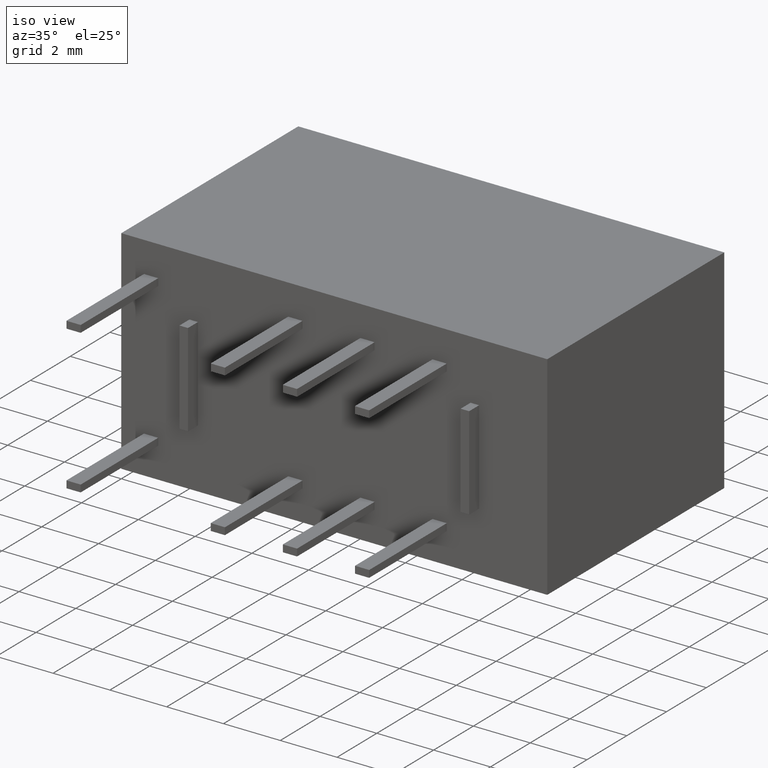
[diagram: clean part render]
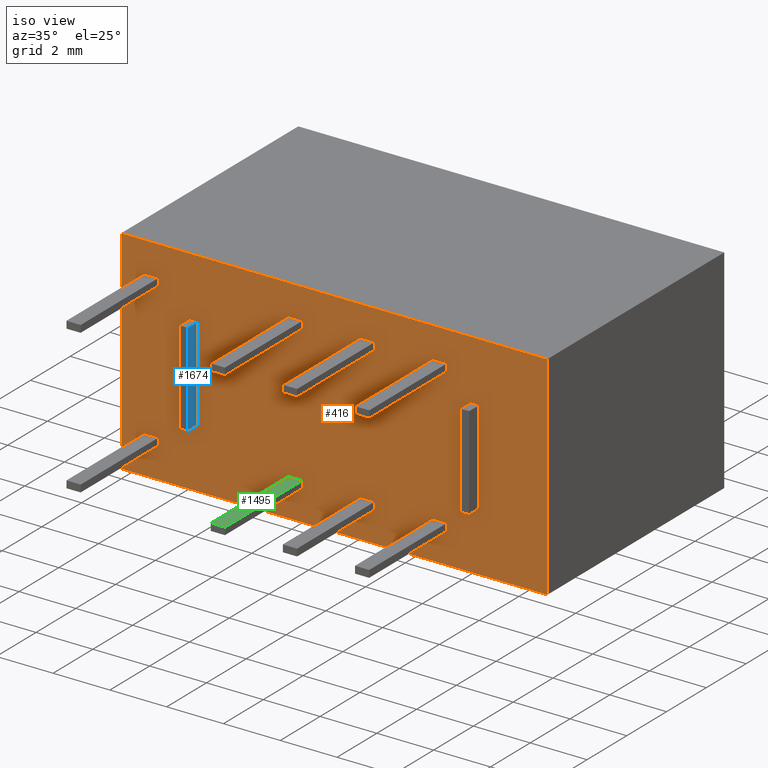
[diagram: same view with three faces highlighted in distinct colors, each labeled with its STEP entity id]
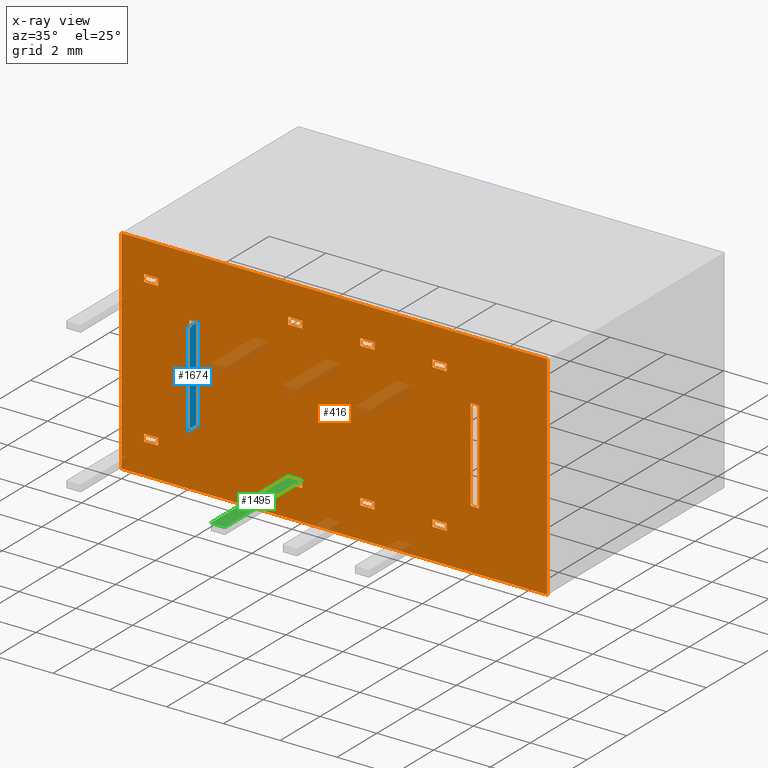
[diagram: x-ray of the same camera — body ghosted, the three highlighted faces saturated]
A machine part, iso view with three faces highlighted in distinct colors.
The next image is the same camera in x-ray (body ghosted, the three faces saturated) — at least one of them is partly hidden behind the body in this view.
Their STEP definitions:

[orange] entity #416 — the highlighted planar face has unit normal (0, -1, 0).
#5 = ORIENTED_EDGE ( 'NONE', *, *, #2717, .F. ) ;
#15 = CARTESIAN_POINT ( 'NONE',  ( 0.7999999999999984900, 0.0000000000000000000, -1.335000000000049300 ) ) ;
#17 = DIRECTION ( 'NONE',  ( -0.0000000000000000000, -0.0000000000000000000, -1.000000000000000000 ) ) ;
#35 = CARTESIAN_POINT ( 'NONE',  ( 2.399570894118510500, 0.0000000000000000000, -5.393876848155541000 ) ) ;
#60 = EDGE_LOOP ( 'NONE', ( #2287, #504, #4759, #1647 ) ) ;
#64 = VECTOR ( 'NONE', #3237, 1000.000000000000000 ) ;
#75 = DIRECTION ( 'NONE',  ( 1.000000000000000000, 0.0000000000000000000, 0.0000000000000000000 ) ) ;
#80 = LINE ( 'NONE', #4477, #4308 ) ;
#94 = VERTEX_POINT ( 'NONE', #846 ) ;
#119 = CARTESIAN_POINT ( 'NONE',  ( 1.299999999999999200, 0.0000000000000000000, -1.085000000000049900 ) ) ;
#129 = ORIENTED_EDGE ( 'NONE', *, *, #686, .F. ) ;
#143 = VECTOR ( 'NONE', #17, 1000.000000000000000 ) ;
#149 = EDGE_CURVE ( 'NONE', #4662, #524, #276, .T. ) ;
#158 = ORIENTED_EDGE ( 'NONE', *, *, #478, .F. ) ;
#169 = ORIENTED_EDGE ( 'NONE', *, *, #1327, .F. ) ;
#178 = CARTESIAN_POINT ( 'NONE',  ( 5.879999999999999900, 0.0000000000000000000, -1.085000000000031500 ) ) ;
#190 = DIRECTION ( 'NONE',  ( 1.000000000000000000, 0.0000000000000000000, 0.0000000000000000000 ) ) ;
#195 = LINE ( 'NONE', #1860, #2008 ) ;
#203 = VECTOR ( 'NONE', #763, 1000.000000000000000 ) ;
#228 = EDGE_CURVE ( 'NONE', #723, #4691, #3564, .T. ) ;
#246 = LINE ( 'NONE', #4403, #619 ) ;
#270 = AXIS2_PLACEMENT_3D ( 'NONE', #4891, #3031, #4115 ) ;
#276 = LINE ( 'NONE', #461, #1677 ) ;
#302 = CARTESIAN_POINT ( 'NONE',  ( 10.95999999999999900, 0.0000000000000000000, -1.334999999999999300 ) ) ;
#307 = CARTESIAN_POINT ( 'NONE',  ( 0.7999999999999986000, 0.0000000000000000000, -6.415000000000049800 ) ) ;
#346 = VERTEX_POINT ( 'NONE', #2514 ) ;
#359 = CARTESIAN_POINT ( 'NONE',  ( 1.300000000000000300, 0.0000000000000000000, -1.335000000000049300 ) ) ;
#362 = LINE ( 'NONE', #3594, #4685 ) ;
#369 = DIRECTION ( 'NONE',  ( 0.0000000000000000000, 0.0000000000000000000, 1.000000000000000000 ) ) ;
#381 = EDGE_CURVE ( 'NONE', #1025, #2221, #2744, .T. ) ;
#401 = CARTESIAN_POINT ( 'NONE',  ( 1.299999999999999200, 0.0000000000000000000, -6.415000000000049800 ) ) ;
#410 = VERTEX_POINT ( 'NONE', #4166 ) ;
#416 = ADVANCED_FACE ( 'NONE', ( #3392, #2389, #4851, #4393, #4905, #4724, #642, #3560, #3211, #2924, #516 ), #3745, .T. ) ;
#417 = DIRECTION ( 'NONE',  ( -0.0000000000000000000, -0.0000000000000000000, 1.000000000000000000 ) ) ;
#424 = LINE ( 'NONE', #4067, #4188 ) ;
#425 = VERTEX_POINT ( 'NONE', #3405 ) ;
#435 = LINE ( 'NONE', #2601, #2785 ) ;
#440 = LINE ( 'NONE', #4014, #3380 ) ;
#461 = CARTESIAN_POINT ( 'NONE',  ( 11.45999999999999900, 0.0000000000000000000, -6.415000000000000900 ) ) ;
#478 = EDGE_CURVE ( 'NONE', #1847, #2189, #3046, .T. ) ;
#483 = EDGE_CURVE ( 'NONE', #1648, #1948, #2075, .T. ) ;
#495 = VERTEX_POINT ( 'NONE', #3092 ) ;
#504 = ORIENTED_EDGE ( 'NONE', *, *, #3091, .F. ) ;
#516 = FACE_BOUND ( 'NONE', #1744, .T. ) ;
#524 = VERTEX_POINT ( 'NONE', #1909 ) ;
#529 = EDGE_LOOP ( 'NONE', ( #2759, #1761, #2803, #898 ) ) ;
#569 = DIRECTION ( 'NONE',  ( -4.336808689942028800E-015, -0.0000000000000000000, 1.000000000000000000 ) ) ;
#585 = EDGE_CURVE ( 'NONE', #4677, #1025, #3327, .T. ) ;
#591 = DIRECTION ( 'NONE',  ( 0.0000000000000000000, 0.0000000000000000000, -1.000000000000000000 ) ) ;
#613 = EDGE_LOOP ( 'NONE', ( #986, #3166, #2715, #1532 ) ) ;
#619 = VECTOR ( 'NONE', #2975, 1000.000000000000000 ) ;
#627 = LINE ( 'NONE', #2554, #1605 ) ;
#642 = FACE_BOUND ( 'NONE', #3192, .T. ) ;
#677 = CARTESIAN_POINT ( 'NONE',  ( 5.879999999999999000, 0.0000000000000000000, -6.415000000000032000 ) ) ;
#686 = EDGE_CURVE ( 'NONE', #3284, #495, #3157, .T. ) ;
#723 = VERTEX_POINT ( 'NONE', #4784 ) ;
#756 = VECTOR ( 'NONE', #1418, 1000.000000000000000 ) ;
#763 = DIRECTION ( 'NONE',  ( -0.0000000000000000000, -0.0000000000000000000, -1.000000000000000000 ) ) ;
#795 = LINE ( 'NONE', #1185, #1752 ) ;
#846 = CARTESIAN_POINT ( 'NONE',  ( 10.95999999999999900, 0.0000000000000000000, -1.084999999999999500 ) ) ;
#864 = EDGE_CURVE ( 'NONE', #3375, #3284, #1428, .T. ) ;
#869 = LINE ( 'NONE', #3185, #4818 ) ;
#891 = DIRECTION ( 'NONE',  ( 1.000000000000000000, 0.0000000000000000000, 0.0000000000000000000 ) ) ;
#893 = EDGE_CURVE ( 'NONE', #2221, #4654, #998, .T. ) ;
#895 = CARTESIAN_POINT ( 'NONE',  ( 2.399570894118510100, 0.0000000000000000000, -2.106123151844458500 ) ) ;
#898 = ORIENTED_EDGE ( 'NONE', *, *, #4896, .F. ) ;
#911 = EDGE_CURVE ( 'NONE', #4749, #1261, #2982, .T. ) ;
#951 = DIRECTION ( 'NONE',  ( 0.0000000000000000000, 0.0000000000000000000, -1.000000000000000000 ) ) ;
#952 = CARTESIAN_POINT ( 'NONE',  ( 5.879999999999999000, 0.0000000000000000000, -6.165000000000031100 ) ) ;
#986 = ORIENTED_EDGE ( 'NONE', *, *, #1136, .F. ) ;
#998 = LINE ( 'NONE', #1742, #3737 ) ;
#1010 = LINE ( 'NONE', #2390, #3103 ) ;
#1025 = VERTEX_POINT ( 'NONE', #1867 ) ;
#1046 = VERTEX_POINT ( 'NONE', #401 ) ;
#1049 = CARTESIAN_POINT ( 'NONE',  ( 1.299999999999999200, 0.0000000000000000000, -6.415000000000049800 ) ) ;
#1066 = DIRECTION ( 'NONE',  ( 0.0000000000000000000, 0.0000000000000000000, 1.000000000000000000 ) ) ;
#1082 = EDGE_LOOP ( 'NONE', ( #2965, #1107, #2352, #2099 ) ) ;
#1107 = ORIENTED_EDGE ( 'NONE', *, *, #2548, .F. ) ;
#1110 = VECTOR ( 'NONE', #1066, 1000.000000000000000 ) ;
#1118 = LINE ( 'NONE', #4781, #3150 ) ;
#1136 = EDGE_CURVE ( 'NONE', #3257, #2605, #4102, .T. ) ;
#1157 = LINE ( 'NONE', #4369, #3250 ) ;
#1160 = CARTESIAN_POINT ( 'NONE',  ( 8.419999999999998200, 0.0000000000000000000, -1.085000000000015500 ) ) ;
#1185 = CARTESIAN_POINT ( 'NONE',  ( 0.7999999999999986000, 0.0000000000000000000, -6.415000000000049800 ) ) ;
#1240 = CARTESIAN_POINT ( 'NONE',  ( 1.299999999999999200, 0.0000000000000000000, -1.085000000000049900 ) ) ;
#1250 = LINE ( 'NONE', #4136, #203 ) ;
#1260 = DIRECTION ( 'NONE',  ( -1.000000000000000000, -0.0000000000000000000, -0.0000000000000000000 ) ) ;
#1261 = VERTEX_POINT ( 'NONE', #2195 ) ;
#1277 = LINE ( 'NONE', #15, #1330 ) ;
#1327 = EDGE_CURVE ( 'NONE', #1948, #4054, #3378, .T. ) ;
#1330 = VECTOR ( 'NONE', #4182, 1000.000000000000000 ) ;
#1333 = VERTEX_POINT ( 'NONE', #302 ) ;
#1342 = LINE ( 'NONE', #677, #3643 ) ;
#1366 = EDGE_CURVE ( 'NONE', #425, #3257, #2493, .T. ) ;
#1412 = VERTEX_POINT ( 'NONE', #2267 ) ;
#1418 = DIRECTION ( 'NONE',  ( -1.000000000000000000, -0.0000000000000000000, -0.0000000000000000000 ) ) ;
#1424 = DIRECTION ( 'NONE',  ( -1.000000000000000000, -0.0000000000000000000, -0.0000000000000000000 ) ) ;
#1428 = LINE ( 'NONE', #4072, #1959 ) ;
#1434 = VECTOR ( 'NONE', #4407, 1000.000000000000000 ) ;
#1441 = DIRECTION ( 'NONE',  ( -0.0000000000000000000, -0.0000000000000000000, -1.000000000000000000 ) ) ;
#1457 = ORIENTED_EDGE ( 'NONE', *, *, #3924, .F. ) ;
#1504 = ORIENTED_EDGE ( 'NONE', *, *, #4964, .F. ) ;
#1505 = ORIENTED_EDGE ( 'NONE', *, *, #2593, .F. ) ;
#1532 = ORIENTED_EDGE ( 'NONE', *, *, #4787, .F. ) ;
#1546 = CARTESIAN_POINT ( 'NONE',  ( 11.45999999999999900, 0.0000000000000000000, -6.415000000000000900 ) ) ;
#1552 = VERTEX_POINT ( 'NONE', #3554 ) ;
#1582 = VERTEX_POINT ( 'NONE', #4717 ) ;
#1589 = CARTESIAN_POINT ( 'NONE',  ( 8.419999999999998200, 0.0000000000000000000, -6.415000000000016000 ) ) ;
#1594 = VERTEX_POINT ( 'NONE', #2823 ) ;
#1601 = VERTEX_POINT ( 'NONE', #3174 ) ;
#1605 = VECTOR ( 'NONE', #4817, 1000.000000000000000 ) ;
#1613 = LINE ( 'NONE', #2838, #1897 ) ;
#1644 = CARTESIAN_POINT ( 'NONE',  ( 10.95999999999999900, 0.0000000000000000000, -6.415000000000000900 ) ) ;
#1647 = ORIENTED_EDGE ( 'NONE', *, *, #3119, .F. ) ;
#1648 = VERTEX_POINT ( 'NONE', #1240 ) ;
#1677 = VECTOR ( 'NONE', #2721, 1000.000000000000000 ) ;
#1690 = DIRECTION ( 'NONE',  ( -0.0000000000000000000, -0.0000000000000000000, 1.000000000000000000 ) ) ;
#1711 = VERTEX_POINT ( 'NONE', #4819 ) ;
#1742 = CARTESIAN_POINT ( 'NONE',  ( 15.00000000000000000, 0.0000000000000000000, 0.0000000000000000000 ) ) ;
#1744 = EDGE_LOOP ( 'NONE', ( #3720, #1457, #4315, #2870 ) ) ;
#1752 = VECTOR ( 'NONE', #4951, 1000.000000000000000 ) ;
#1761 = ORIENTED_EDGE ( 'NONE', *, *, #2092, .F. ) ;
#1767 = LINE ( 'NONE', #3684, #756 ) ;
#1769 = VECTOR ( 'NONE', #3301, 1000.000000000000000 ) ;
#1784 = VECTOR ( 'NONE', #4632, 1000.000000000000000 ) ;
#1789 = EDGE_LOOP ( 'NONE', ( #2767, #2356, #1505, #5 ) ) ;
#1844 = CARTESIAN_POINT ( 'NONE',  ( 8.919999999999999900, 0.0000000000000000000, -6.415000000000016000 ) ) ;
#1847 = VERTEX_POINT ( 'NONE', #2539 ) ;
#1860 = CARTESIAN_POINT ( 'NONE',  ( 6.379999999999999000, 0.0000000000000000000, -6.415000000000032000 ) ) ;
#1867 = CARTESIAN_POINT ( 'NONE',  ( 0.0000000000000000000, 0.0000000000000000000, 0.0000000000000000000 ) ) ;
#1870 = EDGE_LOOP ( 'NONE', ( #3957, #1504, #3990, #129 ) ) ;
#1897 = VECTOR ( 'NONE', #951, 1000.000000000000000 ) ;
#1907 = VECTOR ( 'NONE', #1994, 1000.000000000000000 ) ;
#1909 = CARTESIAN_POINT ( 'NONE',  ( 11.45999999999999900, 0.0000000000000000000, -6.165000000000000000 ) ) ;
#1919 = CARTESIAN_POINT ( 'NONE',  ( 8.919999999999999900, 0.0000000000000000000, -1.335000000000015300 ) ) ;
#1928 = DIRECTION ( 'NONE',  ( 0.0000000000000000000, 0.0000000000000000000, 1.000000000000000000 ) ) ;
#1930 = VERTEX_POINT ( 'NONE', #4190 ) ;
#1948 = VERTEX_POINT ( 'NONE', #4208 ) ;
#1959 = VECTOR ( 'NONE', #190, 1000.000000000000000 ) ;
#1965 = DIRECTION ( 'NONE',  ( 0.0000000000000000000, 0.0000000000000000000, -1.000000000000000000 ) ) ;
#1970 = CARTESIAN_POINT ( 'NONE',  ( 10.95999999999999900, 0.0000000000000000000, -6.415000000000000900 ) ) ;
#1973 = EDGE_LOOP ( 'NONE', ( #3053, #3823, #2968, #3335 ) ) ;
#1976 = VERTEX_POINT ( 'NONE', #1160 ) ;
#1994 = DIRECTION ( 'NONE',  ( 1.000000000000000000, 0.0000000000000000000, 0.0000000000000000000 ) ) ;
#2008 = VECTOR ( 'NONE', #1928, 1000.000000000000000 ) ;
#2028 = DIRECTION ( 'NONE',  ( 1.000000000000000000, 0.0000000000000000000, 0.0000000000000000000 ) ) ;
#2075 = LINE ( 'NONE', #4596, #1784 ) ;
#2092 = EDGE_CURVE ( 'NONE', #94, #1333, #1010, .T. ) ;
#2099 = ORIENTED_EDGE ( 'NONE', *, *, #4357, .F. ) ;
#2104 = CARTESIAN_POINT ( 'NONE',  ( 0.0000000000000000000, 0.0000000000000000000, 0.0000000000000000000 ) ) ;
#2163 = ORIENTED_EDGE ( 'NONE', *, *, #381, .F. ) ;
#2189 = VERTEX_POINT ( 'NONE', #1970 ) ;
#2195 = CARTESIAN_POINT ( 'NONE',  ( 6.379999999999999000, 0.0000000000000000000, -6.415000000000032000 ) ) ;
#2217 = CARTESIAN_POINT ( 'NONE',  ( 0.7999999999999986000, 0.0000000000000000000, -6.415000000000049800 ) ) ;
#2221 = VERTEX_POINT ( 'NONE', #2306 ) ;
#2255 = VECTOR ( 'NONE', #4135, 1000.000000000000000 ) ;
#2267 = CARTESIAN_POINT ( 'NONE',  ( 11.45999999999999900, 0.0000000000000000000, -1.084999999999999300 ) ) ;
#2276 = ORIENTED_EDGE ( 'NONE', *, *, #893, .F. ) ;
#2277 = VERTEX_POINT ( 'NONE', #2696 ) ;
#2287 = ORIENTED_EDGE ( 'NONE', *, *, #4758, .F. ) ;
#2302 = VECTOR ( 'NONE', #891, 1000.000000000000000 ) ;
#2306 = CARTESIAN_POINT ( 'NONE',  ( 15.00000000000000000, 0.0000000000000000000, 0.0000000000000000000 ) ) ;
#2347 = CARTESIAN_POINT ( 'NONE',  ( 15.00000000000000000, 0.0000000000000000000, -7.500000000000000000 ) ) ;
#2352 = ORIENTED_EDGE ( 'NONE', *, *, #2519, .F. ) ;
#2356 = ORIENTED_EDGE ( 'NONE', *, *, #4424, .F. ) ;
#2389 = FACE_BOUND ( 'NONE', #3355, .T. ) ;
#2390 = CARTESIAN_POINT ( 'NONE',  ( 10.95999999999999900, 0.0000000000000000000, -1.084999999999999500 ) ) ;
#2395 = CARTESIAN_POINT ( 'NONE',  ( 10.95999999999999900, 0.0000000000000000000, -1.334999999999999300 ) ) ;
#2406 = VERTEX_POINT ( 'NONE', #3927 ) ;
#2431 = EDGE_CURVE ( 'NONE', #3522, #1648, #2502, .T. ) ;
#2458 = DIRECTION ( 'NONE',  ( -1.000000000000000000, -0.0000000000000000000, -0.0000000000000000000 ) ) ;
#2475 = CARTESIAN_POINT ( 'NONE',  ( 5.879999999999999900, 0.0000000000000000000, -1.085000000000031500 ) ) ;
#2493 = LINE ( 'NONE', #4523, #2255 ) ;
#2502 = LINE ( 'NONE', #119, #4153 ) ;
#2514 = CARTESIAN_POINT ( 'NONE',  ( 6.379999999999998100, 0.0000000000000000000, -1.335000000000031100 ) ) ;
#2519 = EDGE_CURVE ( 'NONE', #2406, #1711, #2617, .T. ) ;
#2535 = EDGE_CURVE ( 'NONE', #495, #1976, #440, .T. ) ;
#2539 = CARTESIAN_POINT ( 'NONE',  ( 10.95999999999999900, 0.0000000000000000000, -6.165000000000000000 ) ) ;
#2548 = EDGE_CURVE ( 'NONE', #1711, #1582, #4320, .T. ) ;
#2554 = CARTESIAN_POINT ( 'NONE',  ( 12.60042910588148900, 0.0000000000000000000, -5.393876848155541000 ) ) ;
#2591 = VERTEX_POINT ( 'NONE', #3615 ) ;
#2593 = EDGE_CURVE ( 'NONE', #2277, #4346, #1767, .T. ) ;
#2601 = CARTESIAN_POINT ( 'NONE',  ( 12.60042910588148900, 0.0000000000000000000, -2.106123151844458500 ) ) ;
#2605 = VERTEX_POINT ( 'NONE', #1844 ) ;
#2617 = LINE ( 'NONE', #2475, #4510 ) ;
#2650 = VERTEX_POINT ( 'NONE', #3357 ) ;
#2653 = VECTOR ( 'NONE', #369, 1000.000000000000000 ) ;
#2667 = EDGE_LOOP ( 'NONE', ( #2958, #3627, #2276, #2163 ) ) ;
#2683 = CARTESIAN_POINT ( 'NONE',  ( 0.0000000000000000000, 0.0000000000000000000, 0.0000000000000000000 ) ) ;
#2696 = CARTESIAN_POINT ( 'NONE',  ( 6.379999999999999000, 0.0000000000000000000, -6.165000000000031100 ) ) ;
#2715 = ORIENTED_EDGE ( 'NONE', *, *, #3996, .F. ) ;
#2717 = EDGE_CURVE ( 'NONE', #1261, #2277, #195, .T. ) ;
#2721 = DIRECTION ( 'NONE',  ( 0.0000000000000000000, 0.0000000000000000000, 1.000000000000000000 ) ) ;
#2724 = LINE ( 'NONE', #4820, #64 ) ;
#2728 = VERTEX_POINT ( 'NONE', #4185 ) ;
#2744 = LINE ( 'NONE', #2104, #1434 ) ;
#2759 = ORIENTED_EDGE ( 'NONE', *, *, #4877, .F. ) ;
#2767 = ORIENTED_EDGE ( 'NONE', *, *, #911, .F. ) ;
#2785 = VECTOR ( 'NONE', #4860, 1000.000000000000000 ) ;
#2803 = ORIENTED_EDGE ( 'NONE', *, *, #4932, .F. ) ;
#2820 = CARTESIAN_POINT ( 'NONE',  ( 5.879999999999999000, 0.0000000000000000000, -1.335000000000031100 ) ) ;
#2823 = CARTESIAN_POINT ( 'NONE',  ( 12.60042910588148900, 0.0000000000000000000, -5.393876848155541000 ) ) ;
#2838 = CARTESIAN_POINT ( 'NONE',  ( 8.419999999999998200, 0.0000000000000000000, -1.085000000000015500 ) ) ;
#2841 = VECTOR ( 'NONE', #1260, 1000.000000000000000 ) ;
#2863 = CARTESIAN_POINT ( 'NONE',  ( 8.919999999999999900, 0.0000000000000000000, -1.085000000000015300 ) ) ;
#2870 = ORIENTED_EDGE ( 'NONE', *, *, #3636, .F. ) ;
#2874 = VERTEX_POINT ( 'NONE', #3873 ) ;
#2893 = CARTESIAN_POINT ( 'NONE',  ( 5.879999999999999000, 0.0000000000000000000, -6.415000000000032000 ) ) ;
#2909 = DIRECTION ( 'NONE',  ( -0.0000000000000000000, -0.0000000000000000000, 1.000000000000000000 ) ) ;
#2921 = DIRECTION ( 'NONE',  ( -3.469446951953620100E-015, 0.0000000000000000000, -1.000000000000000000 ) ) ;
#2924 = FACE_BOUND ( 'NONE', #60, .T. ) ;
#2958 = ORIENTED_EDGE ( 'NONE', *, *, #585, .F. ) ;
#2965 = ORIENTED_EDGE ( 'NONE', *, *, #4920, .F. ) ;
#2968 = ORIENTED_EDGE ( 'NONE', *, *, #4457, .F. ) ;
#2975 = DIRECTION ( 'NONE',  ( -1.000000000000000000, -0.0000000000000000000, -0.0000000000000000000 ) ) ;
#2977 = DIRECTION ( 'NONE',  ( -0.0000000000000000000, -0.0000000000000000000, -1.000000000000000000 ) ) ;
#2982 = LINE ( 'NONE', #2893, #4333 ) ;
#2986 = VECTOR ( 'NONE', #3869, 1000.000000000000000 ) ;
#2997 = CARTESIAN_POINT ( 'NONE',  ( 0.7999999999999984900, 0.0000000000000000000, -1.335000000000049300 ) ) ;
#3000 = EDGE_CURVE ( 'NONE', #2650, #1594, #627, .T. ) ;
#3031 = DIRECTION ( 'NONE',  ( 0.0000000000000000000, -1.000000000000000000, 0.0000000000000000000 ) ) ;
#3032 = LINE ( 'NONE', #1049, #1110 ) ;
#3046 = LINE ( 'NONE', #3390, #143 ) ;
#3053 = ORIENTED_EDGE ( 'NONE', *, *, #4536, .F. ) ;
#3073 = EDGE_CURVE ( 'NONE', #4654, #4677, #246, .T. ) ;
#3091 = EDGE_CURVE ( 'NONE', #4723, #3537, #4262, .T. ) ;
#3092 = CARTESIAN_POINT ( 'NONE',  ( 8.919999999999999900, 0.0000000000000000000, -1.085000000000015300 ) ) ;
#3103 = VECTOR ( 'NONE', #1965, 1000.000000000000000 ) ;
#3119 = EDGE_CURVE ( 'NONE', #1046, #2728, #3032, .T. ) ;
#3150 = VECTOR ( 'NONE', #4750, 1000.000000000000000 ) ;
#3156 = LINE ( 'NONE', #2395, #4158 ) ;
#3157 = LINE ( 'NONE', #2863, #4274 ) ;
#3166 = ORIENTED_EDGE ( 'NONE', *, *, #1366, .F. ) ;
#3174 = CARTESIAN_POINT ( 'NONE',  ( 12.30042910588149000, 0.0000000000000000000, -2.106123151844458500 ) ) ;
#3185 = CARTESIAN_POINT ( 'NONE',  ( 12.60042910588148900, 0.0000000000000000000, -2.106123151844458500 ) ) ;
#3192 = EDGE_LOOP ( 'NONE', ( #3372, #3628, #158, #3294 ) ) ;
#3211 = FACE_BOUND ( 'NONE', #1789, .T. ) ;
#3226 = DIRECTION ( 'NONE',  ( 1.319079557208921600E-016, 0.0000000000000000000, -1.000000000000000000 ) ) ;
#3237 = DIRECTION ( 'NONE',  ( 0.0000000000000000000, 0.0000000000000000000, 1.000000000000000000 ) ) ;
#3250 = VECTOR ( 'NONE', #2909, 1000.000000000000000 ) ;
#3257 = VERTEX_POINT ( 'NONE', #1589 ) ;
#3263 = VECTOR ( 'NONE', #1441, 1000.000000000000000 ) ;
#3284 = VERTEX_POINT ( 'NONE', #1919 ) ;
#3294 = ORIENTED_EDGE ( 'NONE', *, *, #4131, .F. ) ;
#3301 = DIRECTION ( 'NONE',  ( -1.000000000000000000, -0.0000000000000000000, -0.0000000000000000000 ) ) ;
#3327 = LINE ( 'NONE', #2683, #2986 ) ;
#3335 = ORIENTED_EDGE ( 'NONE', *, *, #4287, .F. ) ;
#3355 = EDGE_LOOP ( 'NONE', ( #4245, #169, #3753, #3623 ) ) ;
#3357 = CARTESIAN_POINT ( 'NONE',  ( 12.30042910588149000, -0.0000000000000000000, -5.393876848155541000 ) ) ;
#3369 = EDGE_CURVE ( 'NONE', #2728, #4723, #362, .T. ) ;
#3372 = ORIENTED_EDGE ( 'NONE', *, *, #149, .F. ) ;
#3373 = DIRECTION ( 'NONE',  ( -4.770489558936232100E-015, 0.0000000000000000000, -1.000000000000000000 ) ) ;
#3375 = VERTEX_POINT ( 'NONE', #3630 ) ;
#3378 = LINE ( 'NONE', #3714, #3487 ) ;
#3380 = VECTOR ( 'NONE', #4380, 1000.000000000000000 ) ;
#3390 = CARTESIAN_POINT ( 'NONE',  ( 10.95999999999999900, 0.0000000000000000000, -6.415000000000000900 ) ) ;
#3392 = FACE_BOUND ( 'NONE', #1973, .T. ) ;
#3405 = CARTESIAN_POINT ( 'NONE',  ( 8.419999999999998200, 0.0000000000000000000, -6.165000000000016000 ) ) ;
#3447 = CARTESIAN_POINT ( 'NONE',  ( 0.0000000000000000000, 0.0000000000000000000, -7.500000000000000000 ) ) ;
#3487 = VECTOR ( 'NONE', #3373, 1000.000000000000000 ) ;
#3522 = VERTEX_POINT ( 'NONE', #359 ) ;
#3532 = DIRECTION ( 'NONE',  ( -1.000000000000000000, -0.0000000000000000000, -4.336808689942029100E-016 ) ) ;
#3537 = VERTEX_POINT ( 'NONE', #2217 ) ;
#3554 = CARTESIAN_POINT ( 'NONE',  ( 11.45999999999999900, 0.0000000000000000000, -1.334999999999999300 ) ) ;
#3560 = FACE_BOUND ( 'NONE', #613, .T. ) ;
#3564 = LINE ( 'NONE', #895, #4665 ) ;
#3583 = CARTESIAN_POINT ( 'NONE',  ( 10.95999999999999900, 0.0000000000000000000, -6.165000000000000000 ) ) ;
#3594 = CARTESIAN_POINT ( 'NONE',  ( 0.7999999999999986000, 0.0000000000000000000, -6.165000000000049800 ) ) ;
#3599 = DIRECTION ( 'NONE',  ( 1.000000000000000000, 0.0000000000000000000, 0.0000000000000000000 ) ) ;
#3615 = CARTESIAN_POINT ( 'NONE',  ( 12.60042910588148900, 0.0000000000000000000, -2.106123151844458500 ) ) ;
#3623 = ORIENTED_EDGE ( 'NONE', *, *, #2431, .F. ) ;
#3627 = ORIENTED_EDGE ( 'NONE', *, *, #3073, .F. ) ;
#3628 = ORIENTED_EDGE ( 'NONE', *, *, #4170, .F. ) ;
#3630 = CARTESIAN_POINT ( 'NONE',  ( 8.419999999999998200, 0.0000000000000000000, -1.335000000000015300 ) ) ;
#3635 = DIRECTION ( 'NONE',  ( 1.000000000000000000, 0.0000000000000000000, 0.0000000000000000000 ) ) ;
#3636 = EDGE_CURVE ( 'NONE', #1601, #2650, #1250, .T. ) ;
#3639 = LINE ( 'NONE', #4224, #2653 ) ;
#3643 = VECTOR ( 'NONE', #2977, 1000.000000000000000 ) ;
#3684 = CARTESIAN_POINT ( 'NONE',  ( 5.879999999999999000, 0.0000000000000000000, -6.165000000000031100 ) ) ;
#3712 = CARTESIAN_POINT ( 'NONE',  ( 8.419999999999998200, 0.0000000000000000000, -6.165000000000016000 ) ) ;
#3714 = CARTESIAN_POINT ( 'NONE',  ( 0.7999999999999997100, 0.0000000000000000000, -1.085000000000049900 ) ) ;
#3720 = ORIENTED_EDGE ( 'NONE', *, *, #4193, .F. ) ;
#3737 = VECTOR ( 'NONE', #591, 1000.000000000000000 ) ;
#3745 = PLANE ( 'NONE',  #270 ) ;
#3753 = ORIENTED_EDGE ( 'NONE', *, *, #483, .F. ) ;
#3787 = VECTOR ( 'NONE', #2921, 1000.000000000000000 ) ;
#3794 = CARTESIAN_POINT ( 'NONE',  ( 0.7999999999999986000, 0.0000000000000000000, -6.165000000000049800 ) ) ;
#3799 = VECTOR ( 'NONE', #3599, 1000.000000000000000 ) ;
#3823 = ORIENTED_EDGE ( 'NONE', *, *, #228, .F. ) ;
#3869 = DIRECTION ( 'NONE',  ( -0.0000000000000000000, -0.0000000000000000000, 1.000000000000000000 ) ) ;
#3873 = CARTESIAN_POINT ( 'NONE',  ( 2.699570894118510400, 0.0000000000000000000, -2.106123151844458500 ) ) ;
#3924 = EDGE_CURVE ( 'NONE', #1594, #2591, #435, .T. ) ;
#3927 = CARTESIAN_POINT ( 'NONE',  ( 6.379999999999998100, 0.0000000000000000000, -1.085000000000031300 ) ) ;
#3928 = CARTESIAN_POINT ( 'NONE',  ( 8.419999999999998200, 0.0000000000000000000, -6.415000000000016000 ) ) ;
#3957 = ORIENTED_EDGE ( 'NONE', *, *, #864, .F. ) ;
#3990 = ORIENTED_EDGE ( 'NONE', *, *, #2535, .F. ) ;
#3996 = EDGE_CURVE ( 'NONE', #1930, #425, #4889, .T. ) ;
#4014 = CARTESIAN_POINT ( 'NONE',  ( 8.419999999999998200, 0.0000000000000000000, -1.085000000000015500 ) ) ;
#4054 = VERTEX_POINT ( 'NONE', #2997 ) ;
#4067 = CARTESIAN_POINT ( 'NONE',  ( 2.399570894118510500, 0.0000000000000000000, -5.393876848155541000 ) ) ;
#4072 = CARTESIAN_POINT ( 'NONE',  ( 8.419999999999998200, 0.0000000000000000000, -1.335000000000015300 ) ) ;
#4093 = VECTOR ( 'NONE', #417, 1000.000000000000000 ) ;
#4102 = LINE ( 'NONE', #3928, #1907 ) ;
#4115 = DIRECTION ( 'NONE',  ( 0.0000000000000000000, -0.0000000000000000000, -1.000000000000000000 ) ) ;
#4131 = EDGE_CURVE ( 'NONE', #524, #1847, #4696, .T. ) ;
#4135 = DIRECTION ( 'NONE',  ( -0.0000000000000000000, -0.0000000000000000000, -1.000000000000000000 ) ) ;
#4136 = CARTESIAN_POINT ( 'NONE',  ( 12.30042910588149000, 0.0000000000000000000, -5.393876848155541000 ) ) ;
#4153 = VECTOR ( 'NONE', #569, 1000.000000000000000 ) ;
#4158 = VECTOR ( 'NONE', #2028, 1000.000000000000000 ) ;
#4166 = CARTESIAN_POINT ( 'NONE',  ( 2.699570894118510400, 0.0000000000000000000, -5.393876848155541000 ) ) ;
#4170 = EDGE_CURVE ( 'NONE', #2189, #4662, #4637, .T. ) ;
#4182 = DIRECTION ( 'NONE',  ( 1.000000000000000000, 0.0000000000000000000, 0.0000000000000000000 ) ) ;
#4185 = CARTESIAN_POINT ( 'NONE',  ( 1.299999999999999200, 0.0000000000000000000, -6.165000000000049800 ) ) ;
#4188 = VECTOR ( 'NONE', #75, 1000.000000000000000 ) ;
#4190 = CARTESIAN_POINT ( 'NONE',  ( 8.919999999999999900, 0.0000000000000000000, -6.165000000000016000 ) ) ;
#4193 = EDGE_CURVE ( 'NONE', #2591, #1601, #869, .T. ) ;
#4208 = CARTESIAN_POINT ( 'NONE',  ( 0.7999999999999997100, 0.0000000000000000000, -1.085000000000049900 ) ) ;
#4224 = CARTESIAN_POINT ( 'NONE',  ( 8.919999999999999900, 0.0000000000000000000, -6.415000000000016000 ) ) ;
#4245 = ORIENTED_EDGE ( 'NONE', *, *, #4657, .F. ) ;
#4262 = LINE ( 'NONE', #307, #3263 ) ;
#4274 = VECTOR ( 'NONE', #1690, 1000.000000000000000 ) ;
#4287 = EDGE_CURVE ( 'NONE', #410, #2874, #2724, .T. ) ;
#4308 = VECTOR ( 'NONE', #1424, 1000.000000000000000 ) ;
#4315 = ORIENTED_EDGE ( 'NONE', *, *, #3000, .F. ) ;
#4320 = LINE ( 'NONE', #178, #3787 ) ;
#4333 = VECTOR ( 'NONE', #3635, 1000.000000000000000 ) ;
#4346 = VERTEX_POINT ( 'NONE', #952 ) ;
#4357 = EDGE_CURVE ( 'NONE', #346, #2406, #1157, .T. ) ;
#4369 = CARTESIAN_POINT ( 'NONE',  ( 6.379999999999998100, 0.0000000000000000000, -1.085000000000031300 ) ) ;
#4380 = DIRECTION ( 'NONE',  ( -1.000000000000000000, -0.0000000000000000000, -4.336808689942013800E-016 ) ) ;
#4393 = FACE_BOUND ( 'NONE', #1870, .T. ) ;
#4403 = CARTESIAN_POINT ( 'NONE',  ( 0.0000000000000000000, 0.0000000000000000000, -7.500000000000000000 ) ) ;
#4407 = DIRECTION ( 'NONE',  ( 1.000000000000000000, 0.0000000000000000000, 0.0000000000000000000 ) ) ;
#4424 = EDGE_CURVE ( 'NONE', #4346, #4749, #1342, .T. ) ;
#4457 = EDGE_CURVE ( 'NONE', #2874, #723, #80, .T. ) ;
#4477 = CARTESIAN_POINT ( 'NONE',  ( 2.399570894118510100, 0.0000000000000000000, -2.106123151844458500 ) ) ;
#4510 = VECTOR ( 'NONE', #3532, 1000.000000000000000 ) ;
#4523 = CARTESIAN_POINT ( 'NONE',  ( 8.419999999999998200, 0.0000000000000000000, -6.415000000000016000 ) ) ;
#4536 = EDGE_CURVE ( 'NONE', #4691, #410, #424, .T. ) ;
#4596 = CARTESIAN_POINT ( 'NONE',  ( 0.7999999999999997100, 0.0000000000000000000, -1.085000000000049900 ) ) ;
#4632 = DIRECTION ( 'NONE',  ( -1.000000000000000000, -0.0000000000000000000, -0.0000000000000000000 ) ) ;
#4637 = LINE ( 'NONE', #1644, #2302 ) ;
#4654 = VERTEX_POINT ( 'NONE', #2347 ) ;
#4657 = EDGE_CURVE ( 'NONE', #4054, #3522, #1277, .T. ) ;
#4662 = VERTEX_POINT ( 'NONE', #1546 ) ;
#4665 = VECTOR ( 'NONE', #3226, 1000.000000000000000 ) ;
#4677 = VERTEX_POINT ( 'NONE', #3447 ) ;
#4685 = VECTOR ( 'NONE', #2458, 1000.000000000000000 ) ;
#4691 = VERTEX_POINT ( 'NONE', #35 ) ;
#4696 = LINE ( 'NONE', #3583, #2841 ) ;
#4699 = DIRECTION ( 'NONE',  ( -1.000000000000000000, 0.0000000000000000000, 0.0000000000000000000 ) ) ;
#4714 = CARTESIAN_POINT ( 'NONE',  ( 11.45999999999999900, 0.0000000000000000000, -1.084999999999999300 ) ) ;
#4715 = LINE ( 'NONE', #4714, #4093 ) ;
#4717 = CARTESIAN_POINT ( 'NONE',  ( 5.879999999999999000, 0.0000000000000000000, -1.335000000000031100 ) ) ;
#4723 = VERTEX_POINT ( 'NONE', #3794 ) ;
#4724 = FACE_OUTER_BOUND ( 'NONE', #2667, .T. ) ;
#4749 = VERTEX_POINT ( 'NONE', #4981 ) ;
#4750 = DIRECTION ( 'NONE',  ( -1.000000000000000000, -0.0000000000000000000, -4.336808689942013800E-016 ) ) ;
#4758 = EDGE_CURVE ( 'NONE', #3537, #1046, #795, .T. ) ;
#4759 = ORIENTED_EDGE ( 'NONE', *, *, #3369, .F. ) ;
#4781 = CARTESIAN_POINT ( 'NONE',  ( 10.95999999999999900, 0.0000000000000000000, -1.084999999999999500 ) ) ;
#4784 = CARTESIAN_POINT ( 'NONE',  ( 2.399570894118510100, 0.0000000000000000000, -2.106123151844458500 ) ) ;
#4787 = EDGE_CURVE ( 'NONE', #2605, #1930, #3639, .T. ) ;
#4817 = DIRECTION ( 'NONE',  ( 1.000000000000000000, -0.0000000000000000000, -0.0000000000000000000 ) ) ;
#4818 = VECTOR ( 'NONE', #4699, 1000.000000000000000 ) ;
#4819 = CARTESIAN_POINT ( 'NONE',  ( 5.879999999999999900, 0.0000000000000000000, -1.085000000000031500 ) ) ;
#4820 = CARTESIAN_POINT ( 'NONE',  ( 2.699570894118510400, 0.0000000000000000000, -3.750000000000000000 ) ) ;
#4843 = LINE ( 'NONE', #2820, #3799 ) ;
#4851 = FACE_BOUND ( 'NONE', #1082, .T. ) ;
#4860 = DIRECTION ( 'NONE',  ( -0.0000000000000000000, -0.0000000000000000000, 1.000000000000000000 ) ) ;
#4877 = EDGE_CURVE ( 'NONE', #1333, #1552, #3156, .T. ) ;
#4889 = LINE ( 'NONE', #3712, #1769 ) ;
#4891 = CARTESIAN_POINT ( 'NONE',  ( 0.0000000000000000000, 0.0000000000000000000, 0.0000000000000000000 ) ) ;
#4896 = EDGE_CURVE ( 'NONE', #1552, #1412, #4715, .T. ) ;
#4905 = FACE_BOUND ( 'NONE', #529, .T. ) ;
#4920 = EDGE_CURVE ( 'NONE', #1582, #346, #4843, .T. ) ;
#4932 = EDGE_CURVE ( 'NONE', #1412, #94, #1118, .T. ) ;
#4951 = DIRECTION ( 'NONE',  ( 1.000000000000000000, 0.0000000000000000000, 0.0000000000000000000 ) ) ;
#4964 = EDGE_CURVE ( 'NONE', #1976, #3375, #1613, .T. ) ;
#4981 = CARTESIAN_POINT ( 'NONE',  ( 5.879999999999999000, 0.0000000000000000000, -6.415000000000032000 ) ) ;

[blue] entity #1674 — the highlighted planar face has unit normal (-1, 0, 0).
#64 = VECTOR ( 'NONE', #3237, 1000.000000000000000 ) ;
#189 = LINE ( 'NONE', #2222, #1766 ) ;
#293 = DIRECTION ( 'NONE',  ( -0.0000000000000000000, 1.000000000000000000, -0.0000000000000000000 ) ) ;
#352 = EDGE_LOOP ( 'NONE', ( #1753, #1448, #4322, #1385 ) ) ;
#410 = VERTEX_POINT ( 'NONE', #4166 ) ;
#689 = VECTOR ( 'NONE', #4471, 1000.000000000000000 ) ;
#1239 = LINE ( 'NONE', #4929, #3436 ) ;
#1318 = CARTESIAN_POINT ( 'NONE',  ( 2.699570894118510400, -0.5000000000000000000, -3.750000000000000000 ) ) ;
#1350 = LINE ( 'NONE', #1877, #689 ) ;
#1385 = ORIENTED_EDGE ( 'NONE', *, *, #3169, .T. ) ;
#1448 = ORIENTED_EDGE ( 'NONE', *, *, #1908, .F. ) ;
#1674 = ADVANCED_FACE ( 'NONE', ( #2304 ), #3601, .F. ) ;
#1688 = DIRECTION ( 'NONE',  ( -1.000000000000000000, 0.0000000000000000000, 0.0000000000000000000 ) ) ;
#1691 = VERTEX_POINT ( 'NONE', #3236 ) ;
#1753 = ORIENTED_EDGE ( 'NONE', *, *, #4287, .T. ) ;
#1766 = VECTOR ( 'NONE', #293, 1000.000000000000000 ) ;
#1877 = CARTESIAN_POINT ( 'NONE',  ( 2.699570894118510400, -0.5000000000000000000, -5.393876848155541000 ) ) ;
#1908 = EDGE_CURVE ( 'NONE', #1691, #2874, #1239, .T. ) ;
#1953 = CARTESIAN_POINT ( 'NONE',  ( 2.699570894118510400, -0.5000000000000000000, -5.393876848155541000 ) ) ;
#2222 = CARTESIAN_POINT ( 'NONE',  ( 2.699570894118510400, -0.5000000000000000000, -5.393876848155541000 ) ) ;
#2304 = FACE_OUTER_BOUND ( 'NONE', #352, .T. ) ;
#2633 = EDGE_CURVE ( 'NONE', #4639, #1691, #1350, .T. ) ;
#2724 = LINE ( 'NONE', #4820, #64 ) ;
#2874 = VERTEX_POINT ( 'NONE', #3873 ) ;
#3062 = DIRECTION ( 'NONE',  ( -0.0000000000000000000, 1.000000000000000000, -0.0000000000000000000 ) ) ;
#3169 = EDGE_CURVE ( 'NONE', #4639, #410, #189, .T. ) ;
#3236 = CARTESIAN_POINT ( 'NONE',  ( 2.699570894118510400, -0.5000000000000000000, -2.106123151844458500 ) ) ;
#3237 = DIRECTION ( 'NONE',  ( 0.0000000000000000000, 0.0000000000000000000, 1.000000000000000000 ) ) ;
#3436 = VECTOR ( 'NONE', #3062, 1000.000000000000000 ) ;
#3601 = PLANE ( 'NONE',  #4414 ) ;
#3873 = CARTESIAN_POINT ( 'NONE',  ( 2.699570894118510400, 0.0000000000000000000, -2.106123151844458500 ) ) ;
#3973 = DIRECTION ( 'NONE',  ( 0.0000000000000000000, 0.0000000000000000000, 1.000000000000000000 ) ) ;
#4166 = CARTESIAN_POINT ( 'NONE',  ( 2.699570894118510400, 0.0000000000000000000, -5.393876848155541000 ) ) ;
#4287 = EDGE_CURVE ( 'NONE', #410, #2874, #2724, .T. ) ;
#4322 = ORIENTED_EDGE ( 'NONE', *, *, #2633, .F. ) ;
#4414 = AXIS2_PLACEMENT_3D ( 'NONE', #1318, #1688, #3973 ) ;
#4471 = DIRECTION ( 'NONE',  ( 0.0000000000000000000, 0.0000000000000000000, 1.000000000000000000 ) ) ;
#4639 = VERTEX_POINT ( 'NONE', #1953 ) ;
#4820 = CARTESIAN_POINT ( 'NONE',  ( 2.699570894118510400, 0.0000000000000000000, -3.750000000000000000 ) ) ;
#4929 = CARTESIAN_POINT ( 'NONE',  ( 2.699570894118510400, -0.5000000000000000000, -2.106123151844458500 ) ) ;

[green] entity #1495 — the highlighted planar face has unit normal (0, 0, -1).
#13 = VERTEX_POINT ( 'NONE', #1210 ) ;
#37 = DIRECTION ( 'NONE',  ( 0.0000000000000000000, 0.0000000000000000000, -1.000000000000000000 ) ) ;
#46 = ORIENTED_EDGE ( 'NONE', *, *, #3443, .T. ) ;
#222 = CARTESIAN_POINT ( 'NONE',  ( 5.879999999999999000, -3.899999999999999900, -6.165000000000031100 ) ) ;
#257 = EDGE_CURVE ( 'NONE', #1869, #13, #3984, .T. ) ;
#272 = DIRECTION ( 'NONE',  ( -0.0000000000000000000, 1.000000000000000000, -0.0000000000000000000 ) ) ;
#404 = CARTESIAN_POINT ( 'NONE',  ( 5.879999999999999000, -3.899999999999999900, -6.165000000000031100 ) ) ;
#649 = CARTESIAN_POINT ( 'NONE',  ( 6.379999999999999000, -3.899999999999999900, -6.165000000000031100 ) ) ;
#756 = VECTOR ( 'NONE', #1418, 1000.000000000000000 ) ;
#952 = CARTESIAN_POINT ( 'NONE',  ( 5.879999999999999000, 0.0000000000000000000, -6.165000000000031100 ) ) ;
#1210 = CARTESIAN_POINT ( 'NONE',  ( 5.879999999999999000, -3.899999999999999900, -6.165000000000031100 ) ) ;
#1343 = CARTESIAN_POINT ( 'NONE',  ( 5.879999999999999000, -3.899999999999999900, -6.165000000000031100 ) ) ;
#1418 = DIRECTION ( 'NONE',  ( -1.000000000000000000, -0.0000000000000000000, -0.0000000000000000000 ) ) ;
#1495 = ADVANCED_FACE ( 'NONE', ( #2184 ), #1562, .F. ) ;
#1501 = ORIENTED_EDGE ( 'NONE', *, *, #257, .F. ) ;
#1524 = LINE ( 'NONE', #649, #4559 ) ;
#1562 = PLANE ( 'NONE',  #4231 ) ;
#1729 = DIRECTION ( 'NONE',  ( -1.000000000000000000, -0.0000000000000000000, -0.0000000000000000000 ) ) ;
#1767 = LINE ( 'NONE', #3684, #756 ) ;
#1810 = ORIENTED_EDGE ( 'NONE', *, *, #2593, .T. ) ;
#1869 = VERTEX_POINT ( 'NONE', #4537 ) ;
#1937 = DIRECTION ( 'NONE',  ( -1.000000000000000000, 0.0000000000000000000, -0.0000000000000000000 ) ) ;
#2184 = FACE_OUTER_BOUND ( 'NONE', #3851, .T. ) ;
#2277 = VERTEX_POINT ( 'NONE', #2696 ) ;
#2313 = LINE ( 'NONE', #222, #3085 ) ;
#2522 = ORIENTED_EDGE ( 'NONE', *, *, #3029, .F. ) ;
#2593 = EDGE_CURVE ( 'NONE', #2277, #4346, #1767, .T. ) ;
#2696 = CARTESIAN_POINT ( 'NONE',  ( 6.379999999999999000, 0.0000000000000000000, -6.165000000000031100 ) ) ;
#3029 = EDGE_CURVE ( 'NONE', #13, #4346, #2313, .T. ) ;
#3085 = VECTOR ( 'NONE', #3314, 1000.000000000000000 ) ;
#3314 = DIRECTION ( 'NONE',  ( -0.0000000000000000000, 1.000000000000000000, -0.0000000000000000000 ) ) ;
#3443 = EDGE_CURVE ( 'NONE', #1869, #2277, #1524, .T. ) ;
#3624 = VECTOR ( 'NONE', #1729, 1000.000000000000000 ) ;
#3684 = CARTESIAN_POINT ( 'NONE',  ( 5.879999999999999000, 0.0000000000000000000, -6.165000000000031100 ) ) ;
#3851 = EDGE_LOOP ( 'NONE', ( #1810, #2522, #1501, #46 ) ) ;
#3984 = LINE ( 'NONE', #1343, #3624 ) ;
#4231 = AXIS2_PLACEMENT_3D ( 'NONE', #404, #37, #1937 ) ;
#4346 = VERTEX_POINT ( 'NONE', #952 ) ;
#4537 = CARTESIAN_POINT ( 'NONE',  ( 6.379999999999999000, -3.899999999999999900, -6.165000000000031100 ) ) ;
#4559 = VECTOR ( 'NONE', #272, 1000.000000000000000 ) ;